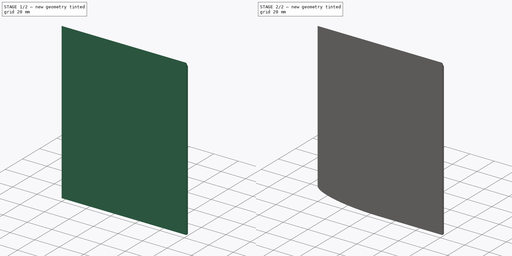
[diagram: build sequence overview — one tinted view per stage of 2, left to right]
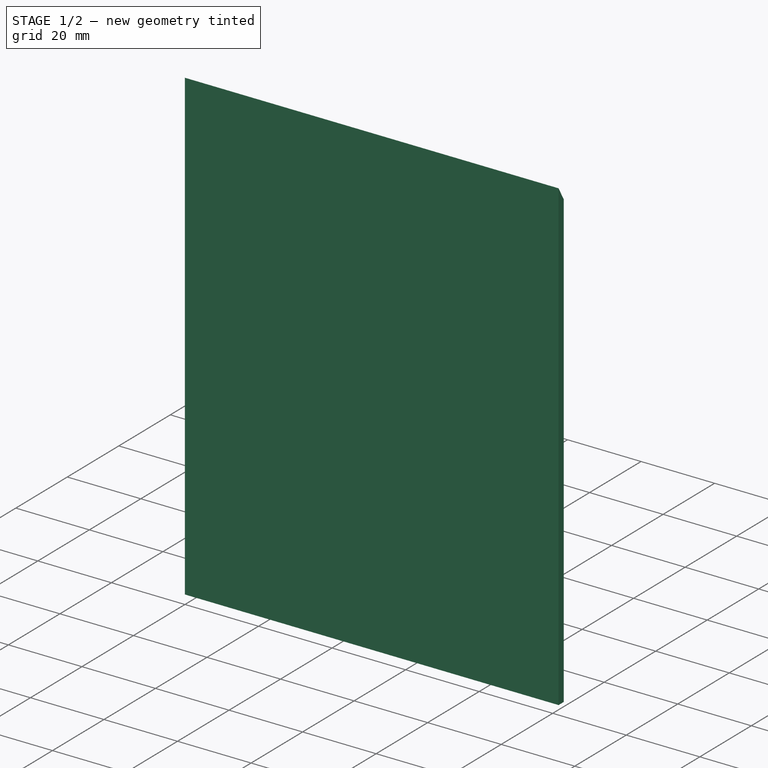
[diagram: stage 1 of 2 — iso view after this stage's code; geometry added in this stage tinted green]
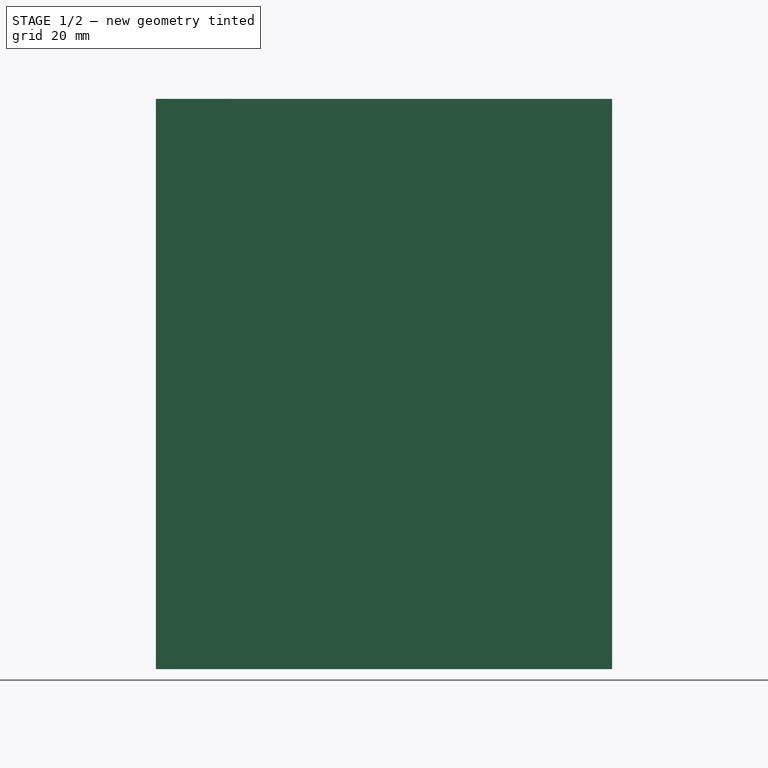
[diagram: stage 1 of 2 — front view after this stage's code; geometry added in this stage tinted green]
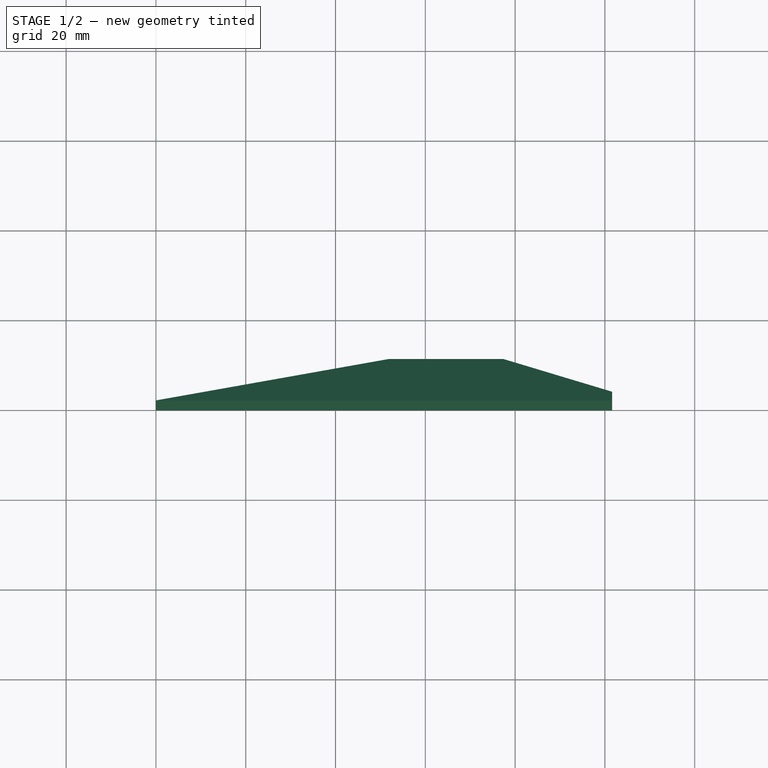
[diagram: stage 1 of 2 — top view after this stage's code; geometry added in this stage tinted green]
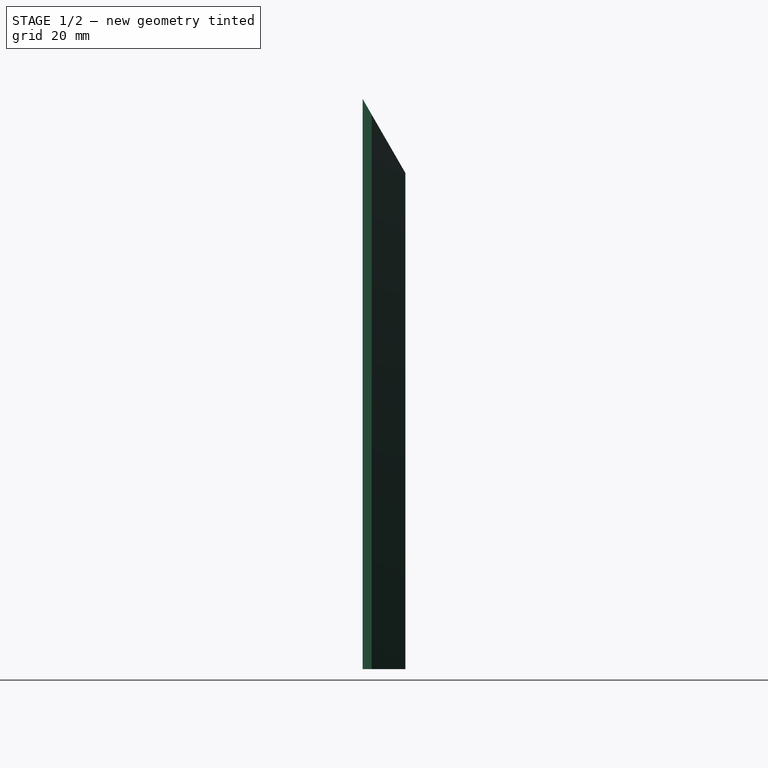
[diagram: stage 1 of 2 — right view after this stage's code; geometry added in this stage tinted green]
FCSTD DOCUMENT  (FreeCAD 0.18.1R)
Label: winglet
License: All rights reserved
LicenseURL: http://en.wikipedia.org/wiki/All_rights_reserved
objects: Sketcher::SketchObject×1, PartDesign::Pad×1, PartDesign::Draft×1, PartDesign::Fillet×1, PartDesign::Body×1
note: 6 computed .brp shape members not serialized (recipe doc carries the construction recipe); baked Part::Feature solids carry a one-line shape summary decoded from their .brp

FEATURE [Sketcher::SketchObject] Sketch
  MapMode = 5
  Support = -> [XY_Plane]
  sketch-geometry (5):
    g0: LineSegment StartX=0 StartY=0 StartZ=0 EndX=101.6 EndY=0 EndZ=0
    g1: LineSegment StartX=101.6 StartY=0 StartZ=0 EndX=101.6 EndY=2 EndZ=0
    g2: LineSegment StartX=101.6 StartY=2 StartZ=0 EndX=77.3403 EndY=9.525 EndZ=0
    g3: LineSegment StartX=77.3403 StartY=9.525 StartZ=0 EndX=51.9403 EndY=9.525 EndZ=0
    g4: LineSegment StartX=51.9403 StartY=9.525 StartZ=0 EndX=0 EndY=0 EndZ=0
  constraints (14):
    c: Coincident(g-1,g0)
    c: PointOnObject(g0,g-1)
    c: Coincident(g0,g1)
    c: Coincident(g1,g2)
    c: Coincident(g2,g3)
    c: Coincident(g3,g4)
    c: Coincident(g4,g0)
    c: Horizontal(g3)
    c: DistanceX(g0,g0) = 101.6
    c: DistanceX(g1,g0) = 0
    c: Distance(g2) = 25.4
    c: Distance(g3) = 25.4
    c: DistanceY(g0,g2) = 9.525
    c: DistanceY(g0,g1) = 2
FEATURE [PartDesign::Pad] Pad
  Length = 127
  Length2 = 100
  Profile = -> Sketch
  Refine = true
  Type = 0
FEATURE [PartDesign::Draft] Draft
  Angle = 30
  Base = -> Pad [Face7]
  BaseFeature = -> Pad
  NeutralPlane = -> Pad [Face1]
  PullDirection = -> Pad [Edge5]
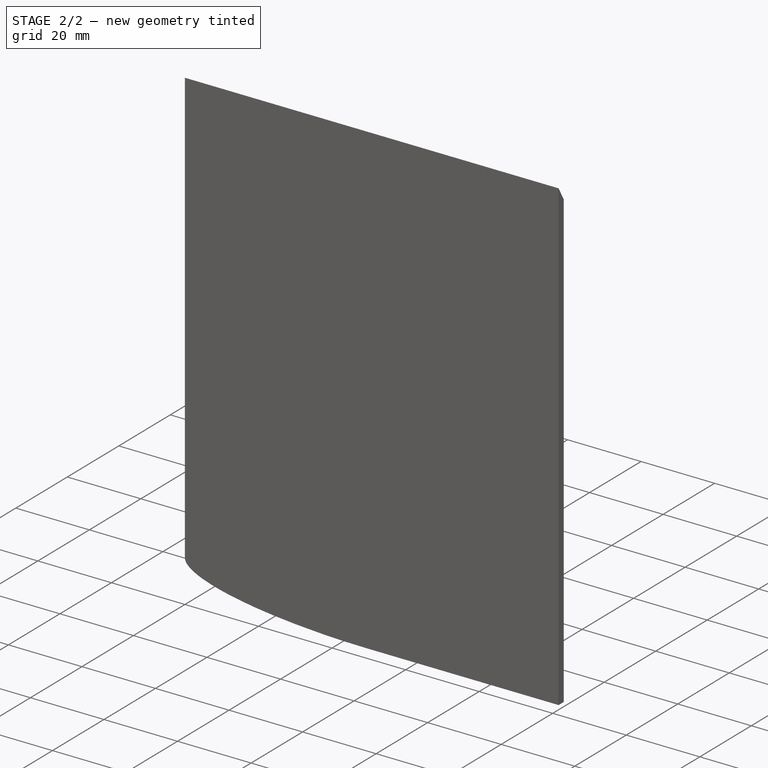
[diagram: stage 2 of 2 — iso view after this stage's code; geometry added in this stage tinted green]
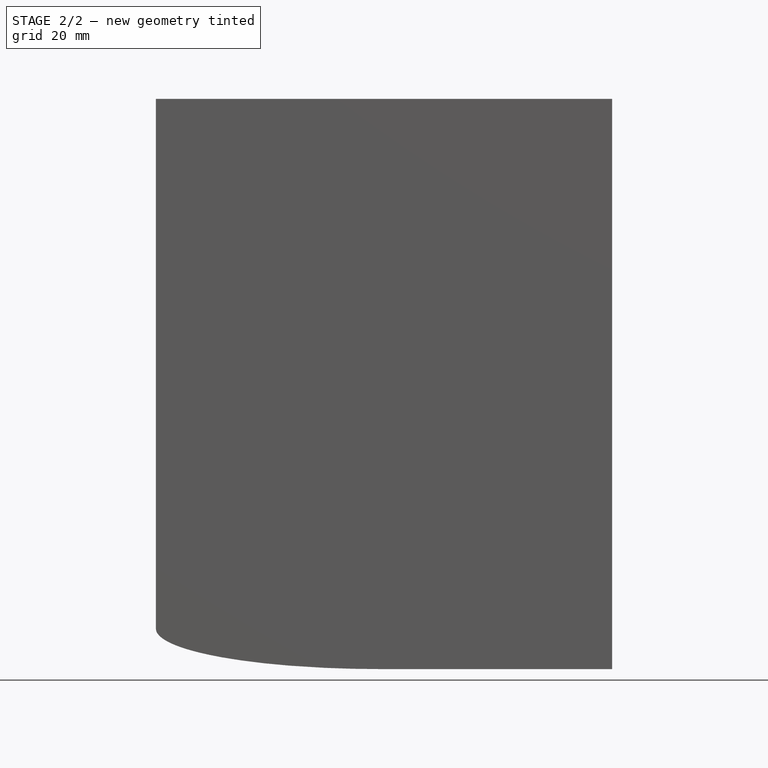
[diagram: stage 2 of 2 — front view after this stage's code; geometry added in this stage tinted green]
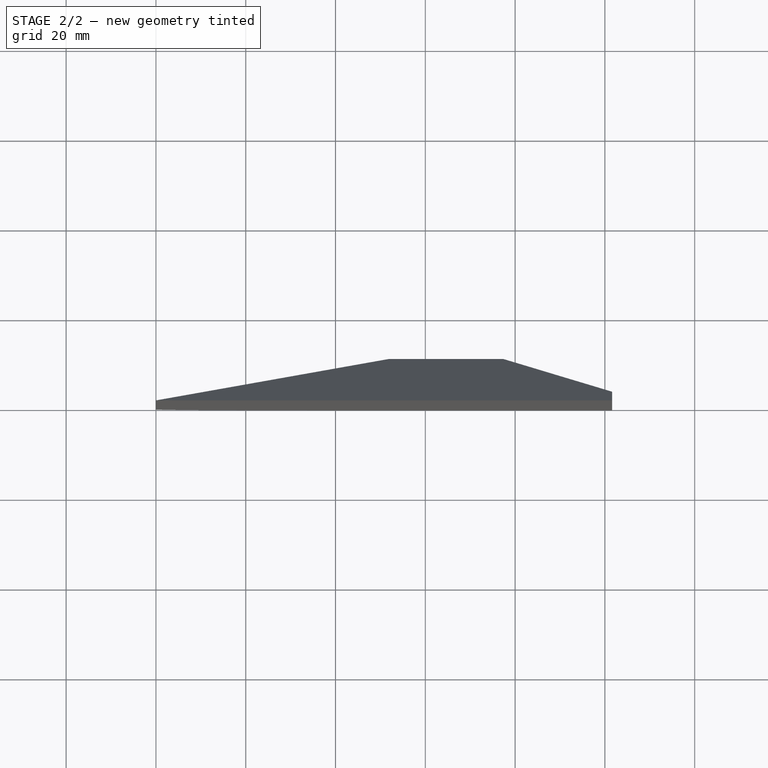
[diagram: stage 2 of 2 — top view after this stage's code; geometry added in this stage tinted green]
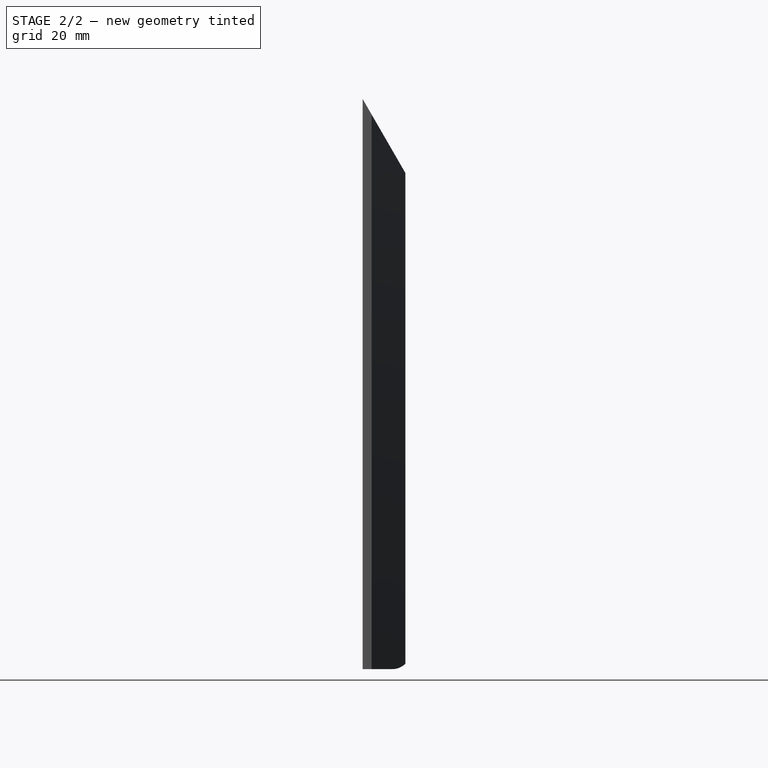
[diagram: stage 2 of 2 — right view after this stage's code; geometry added in this stage tinted green]
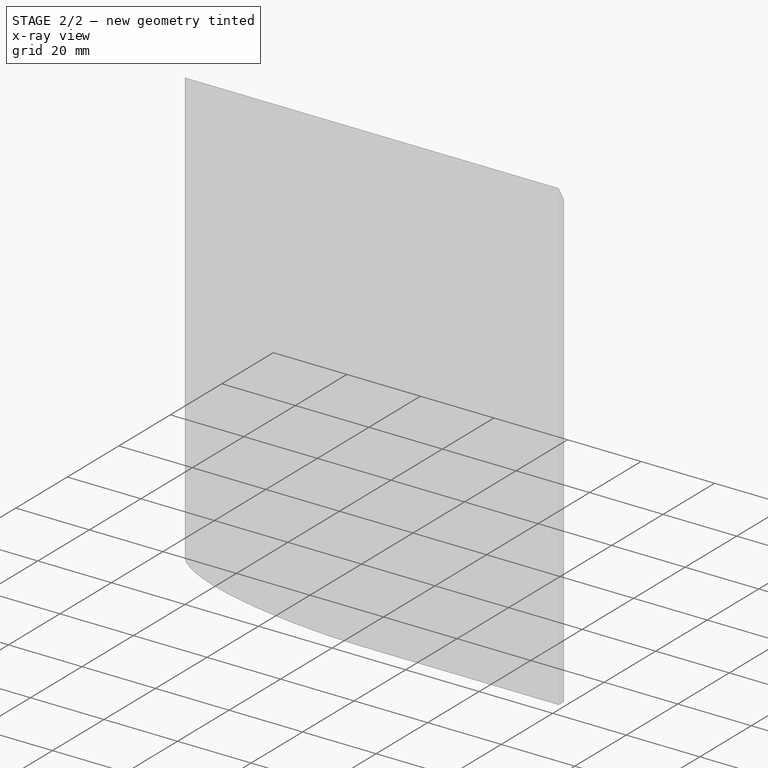
[diagram: stage 2 of 2 — x-ray composite at the iso view; earlier geometry ghosted, this stage's added geometry solid]
FEATURE [PartDesign::Fillet] Fillet
  Base = -> Draft [Edge14]
  BaseFeature = -> Draft
  Radius = 9
FEATURE [PartDesign::Body] Body
  Group = -> [Sketch,Pad,Draft,Fillet]
  Origin = -> Origin
  Tip = -> Fillet
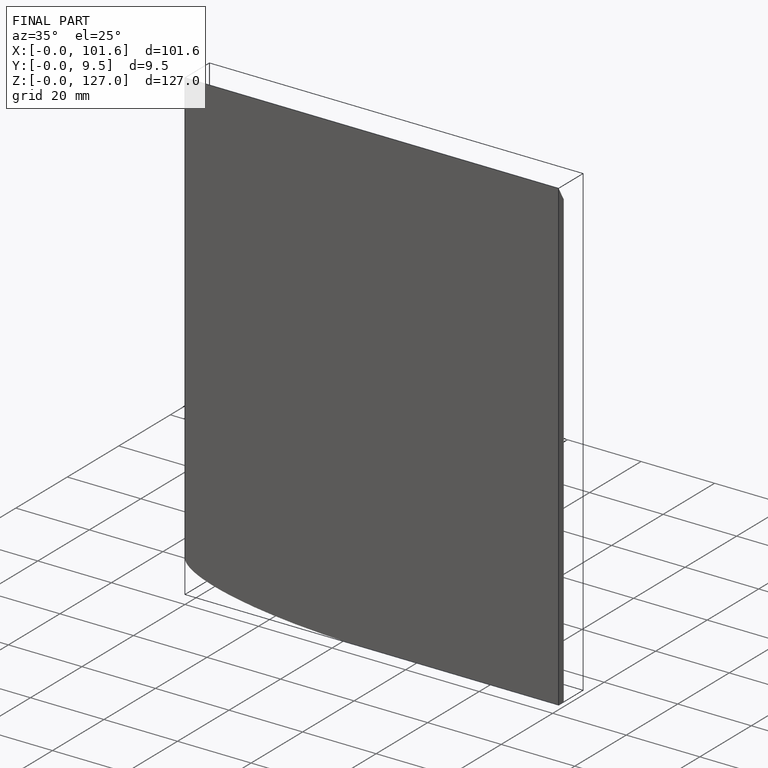
[diagram: finished part — iso view with bounding-box wireframe]
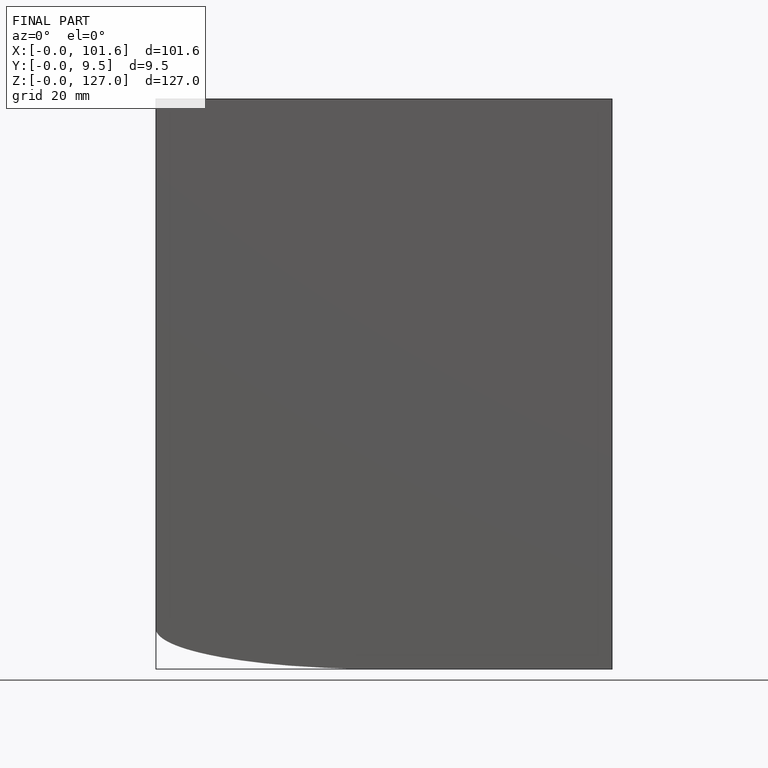
[diagram: finished part — front view with bounding-box wireframe]
